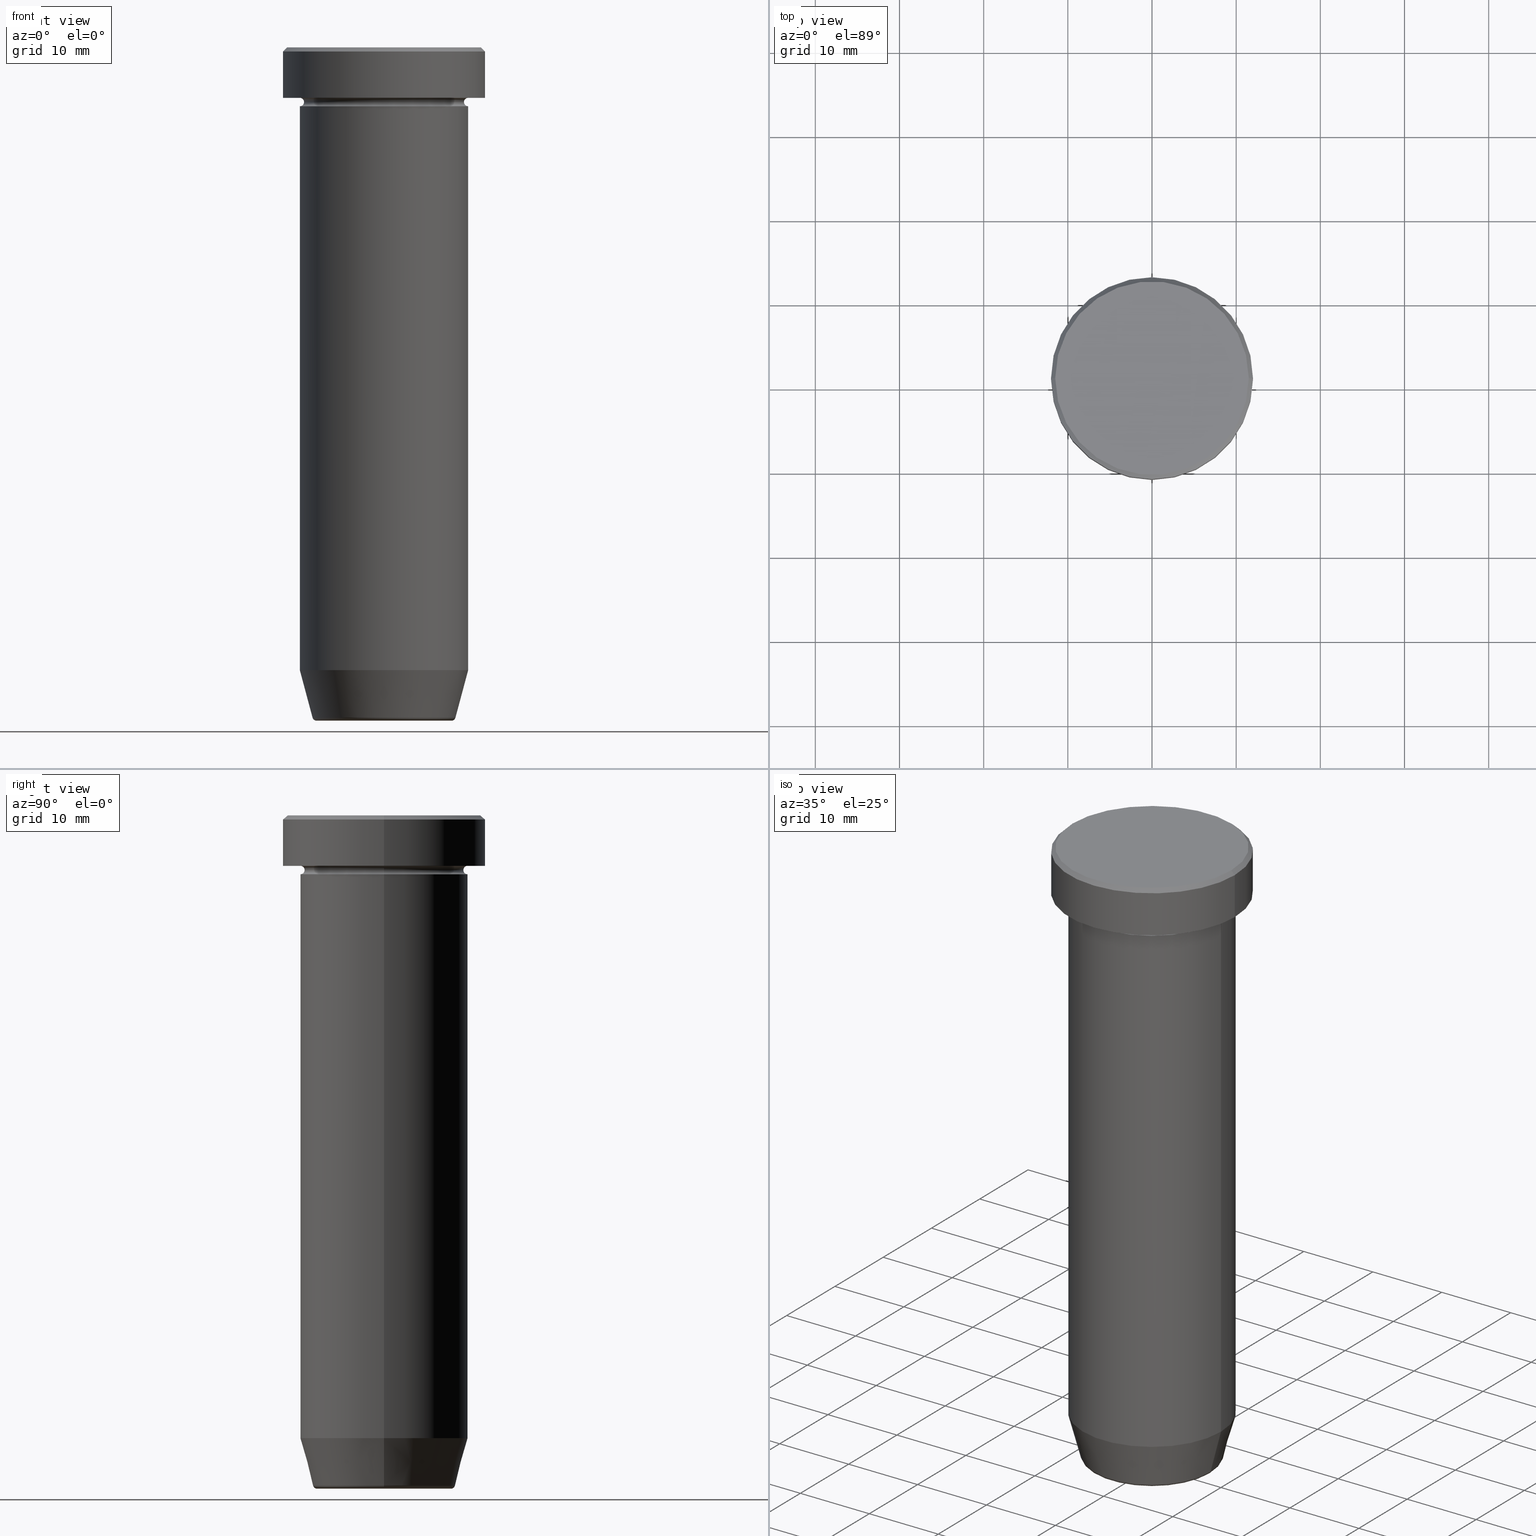
[diagram: canonical four-view strip — front | top / right | iso, engineering-drawing reading convention]
A machine part, canonical four-view strip (front | top / right | iso — engineering-drawing reading convention). The complete STEP part file that produces these views, byte-faithful:
ISO-10303-21;
HEADER;
FILE_DESCRIPTION (( 'STEP AP203' ),
    '1' );
FILE_NAME ('8bd7.STEP',
    '2024-01-02T20:49:21',
    ( '' ),
    ( '' ),
    'SwSTEP 2.0',
    'SolidWorks 2019',
    '' );
FILE_SCHEMA (( 'CONFIG_CONTROL_DESIGN' ));
ENDSEC;

DATA;
#1 = ORIENTED_EDGE ( 'NONE', *, *, #551, .F. ) ;
#2 = DIRECTION ( 'NONE',  ( 1.000000000000000000, 0.000000000000000000, 0.000000000000000000 ) ) ;
#3 = CARTESIAN_POINT ( 'NONE',  ( -9.999999999999998224, 1.224646799147353059E-15, 0.000000000000000000 ) ) ;
#4 = VECTOR ( 'NONE', #360, 1000.000000000000000 ) ;
#5 = CARTESIAN_POINT ( 'NONE',  ( -10.00000000000000000, 1.224646799147353256E-15, -6.999999999999999112 ) ) ;
#6 = UNCERTAINTY_MEASURE_WITH_UNIT (LENGTH_MEASURE( 1.000000000000000082E-05 ), #138, 'distance_accuracy_value', 'NONE');
#7 = CIRCLE ( 'NONE', #552, 10.00000000000000000 ) ;
#8 = AXIS2_PLACEMENT_3D ( 'NONE', #95, #547, #2 ) ;
#9 = LINE ( 'NONE', #133, #162 ) ;
#10 = CARTESIAN_POINT ( 'NONE',  ( -9.999999999999998224, 1.224646799147353059E-15, -74.00000000000000000 ) ) ;
#11 = ADVANCED_FACE ( 'NONE', ( #256 ), #363, .T. ) ;
#12 = FACE_OUTER_BOUND ( 'NONE', #405, .T. ) ;
#13 = AXIS2_PLACEMENT_3D ( 'NONE', #532, #304, #534 ) ;
#14 = CC_DESIGN_PERSON_AND_ORGANIZATION_ASSIGNMENT ( #125, #343, ( #379 ) ) ;
#15 = AXIS2_PLACEMENT_3D ( 'NONE', #237, #385, #413 ) ;
#16 = AXIS2_PLACEMENT_3D ( 'NONE', #272, #348, #215 ) ;
#17 = VECTOR ( 'NONE', #230, 1000.000000000000000 ) ;
#18 = CC_DESIGN_APPROVAL ( #190, ( #132 ) ) ;
#19 = ORIENTED_EDGE ( 'NONE', *, *, #240, .T. ) ;
#20 = EDGE_CURVE ( 'NONE', #126, #492, #188, .T. ) ;
#21 = AXIS2_PLACEMENT_3D ( 'NONE', #326, #105, #330 ) ;
#22 = COORDINATED_UNIVERSAL_TIME_OFFSET ( 1, 0, .AHEAD. ) ;
#23 = DIRECTION ( 'NONE',  ( 1.000000000000000000, 0.000000000000000000, 0.000000000000000000 ) ) ;
#24 = COORDINATED_UNIVERSAL_TIME_OFFSET ( 1, 0, .AHEAD. ) ;
#25 = CIRCLE ( 'NONE', #455, 8.008641351423779753 ) ;
#26 = CARTESIAN_POINT ( 'NONE',  ( 10.00000000000000000, 0.000000000000000000, -6.499999999999999112 ) ) ;
#27 = ORIENTED_EDGE ( 'NONE', *, *, #322, .T. ) ;
#28 = TOROIDAL_SURFACE ( 'NONE', #254, 10.00000000000000000, 0.5000000000000000000 ) ;
#29 = DIRECTION ( 'NONE',  ( -0.000000000000000000, -0.000000000000000000, 1.000000000000000000 ) ) ;
#30 = ADVANCED_FACE ( 'NONE', ( #432 ), #153, .T. ) ;
#31 = APPROVAL ( #591, 'NEUR�EN�' ) ;
#32 = ORIENTED_EDGE ( 'NONE', *, *, #20, .T. ) ;
#33 = AXIS2_PLACEMENT_3D ( 'NONE', #560, #29, #290 ) ;
#34 = DIRECTION ( 'NONE',  ( 0.000000000000000000, 0.000000000000000000, -1.000000000000000000 ) ) ;
#35 = ORIENTED_EDGE ( 'NONE', *, *, #298, .F. ) ;
#36 = CARTESIAN_POINT ( 'NONE',  ( 10.00000000000000000, 0.000000000000000000, -20.00000000000000000 ) ) ;
#37 = DIRECTION ( 'NONE',  ( -0.000000000000000000, -0.000000000000000000, 1.000000000000000000 ) ) ;
#38 = ADVANCED_FACE ( 'NONE', ( #340 ), #320, .T. ) ;
#39 = LOCAL_TIME ( 21, 49, 21.00000000000000000, #22 ) ;
#40 = DIRECTION ( 'NONE',  ( 0.000000000000000000, 0.000000000000000000, -1.000000000000000000 ) ) ;
#41 = ORIENTED_EDGE ( 'NONE', *, *, #576, .F. ) ;
#42 = DIRECTION ( 'NONE',  ( -0.000000000000000000, -0.000000000000000000, 1.000000000000000000 ) ) ;
#43 = CARTESIAN_POINT ( 'NONE',  ( 0.000000000000000000, 0.000000000000000000, -6.499999999999999112 ) ) ;
#44 = VECTOR ( 'NONE', #540, 1000.000000000000000 ) ;
#45 = CYLINDRICAL_SURFACE ( 'NONE', #299, 10.00000000000000000 ) ;
#46 = AXIS2_PLACEMENT_3D ( 'NONE', #506, #232, #317 ) ;
#47 = EDGE_CURVE ( 'NONE', #517, #115, #577, .T. ) ;
#48 = FACE_OUTER_BOUND ( 'NONE', #426, .T. ) ;
#49 = DIRECTION ( 'NONE',  ( -1.000000000000000000, 0.000000000000000000, 0.000000000000000000 ) ) ;
#50 = ORIENTED_EDGE ( 'NONE', *, *, #213, .T. ) ;
#51 = FACE_OUTER_BOUND ( 'NONE', #555, .T. ) ;
#52 = DIRECTION ( 'NONE',  ( 1.000000000000000000, 0.000000000000000000, 0.000000000000000000 ) ) ;
#53 = EDGE_CURVE ( 'NONE', #454, #492, #209, .T. ) ;
#54 = TOROIDAL_SURFACE ( 'NONE', #284, 8.008641351423779753, 0.5000000000000000000 ) ;
#55 = CONICAL_SURFACE ( 'NONE', #181, 11.49999999999999822, 0.7853981633974447263 ) ;
#56 = PERSON_AND_ORGANIZATION ( #250, #543 ) ;
#57 = EDGE_LOOP ( 'NONE', ( #359, #148, #197, #357 ) ) ;
#58 = EDGE_CURVE ( 'NONE', #580, #436, #470, .T. ) ;
#59 = CARTESIAN_POINT ( 'NONE',  ( 0.000000000000000000, 0.000000000000000000, 0.000000000000000000 ) ) ;
#60 = DIRECTION ( 'NONE',  ( 0.000000000000000000, 0.000000000000000000, -1.000000000000000000 ) ) ;
#61 = CIRCLE ( 'NONE', #364, 10.00000000000000000 ) ;
#62 = COORDINATED_UNIVERSAL_TIME_OFFSET ( 1, 0, .AHEAD. ) ;
#63 = ORIENTED_EDGE ( 'NONE', *, *, #68, .F. ) ;
#64 = DIRECTION ( 'NONE',  ( 1.000000000000000000, 0.000000000000000000, 0.000000000000000000 ) ) ;
#65 = DIRECTION ( 'NONE',  ( -0.000000000000000000, -0.000000000000000000, 1.000000000000000000 ) ) ;
#66 = PLANE ( 'NONE',  #501 ) ;
#67 = APPROVAL_ROLE ( '' ) ;
#68 = EDGE_CURVE ( 'NONE', #492, #126, #559, .T. ) ;
#69 = VERTEX_POINT ( 'NONE', #578 ) ;
#70 = DIRECTION ( 'NONE',  ( 1.000000000000000000, 0.000000000000000000, 0.000000000000000000 ) ) ;
#71 = AXIS2_PLACEMENT_3D ( 'NONE', #117, #266, #313 ) ;
#72 = APPROVAL_ROLE ( '' ) ;
#73 = CC_DESIGN_APPROVAL ( #31, ( #379 ) ) ;
#74 = DIRECTION ( 'NONE',  ( 1.000000000000000000, 0.000000000000000000, 0.000000000000000000 ) ) ;
#75 = DIRECTION ( 'NONE',  ( 0.000000000000000000, 0.000000000000000000, -1.000000000000000000 ) ) ;
#76 = ORIENTED_EDGE ( 'NONE', *, *, #199, .T. ) ;
#77 = ORIENTED_EDGE ( 'NONE', *, *, #403, .T. ) ;
#78 = DIRECTION ( 'NONE',  ( -0.000000000000000000, -0.000000000000000000, 1.000000000000000000 ) ) ;
#79 = CARTESIAN_POINT ( 'NONE',  ( 0.000000000000000000, 0.000000000000000000, -79.62940952255127058 ) ) ;
#80 = DIRECTION ( 'NONE',  ( -0.000000000000000000, -0.000000000000000000, 1.000000000000000000 ) ) ;
#81 = EDGE_CURVE ( 'NONE', #124, #126, #353, .T. ) ;
#82 = COORDINATED_UNIVERSAL_TIME_OFFSET ( 1, 0, .AHEAD. ) ;
#83 = DIRECTION ( 'NONE',  ( -0.000000000000000000, -0.000000000000000000, 1.000000000000000000 ) ) ;
#84 = ORIENTED_EDGE ( 'NONE', *, *, #113, .T. ) ;
#85 = EDGE_LOOP ( 'NONE', ( #27, #301 ) ) ;
#86 = AXIS2_PLACEMENT_3D ( 'NONE', #123, #75, #206 ) ;
#87 = CARTESIAN_POINT ( 'NONE',  ( 0.000000000000000000, 0.000000000000000000, -80.00000000000000000 ) ) ;
#88 = CARTESIAN_POINT ( 'NONE',  ( 0.000000000000000000, 0.000000000000000000, -0.5000000000000056621 ) ) ;
#89 = PRODUCT ( '8bd7', '8bd7', '', ( #508 ) ) ;
#90 = ORIENTED_EDGE ( 'NONE', *, *, #382, .F. ) ;
#91 = APPROVAL_DATE_TIME ( #365, #497 ) ;
#92 = CARTESIAN_POINT ( 'NONE',  ( 0.000000000000000000, 0.000000000000000000, -80.00000000000000000 ) ) ;
#93 = ADVANCED_FACE ( 'NONE', ( #307 ), #261, .T. ) ;
#94 = VERTEX_POINT ( 'NONE', #283 ) ;
#95 = CARTESIAN_POINT ( 'NONE',  ( 0.000000000000000000, 0.000000000000000000, 0.000000000000000000 ) ) ;
#96 = AXIS2_PLACEMENT_3D ( 'NONE', #59, #392, #64 ) ;
#97 = FACE_BOUND ( 'NONE', #459, .T. ) ;
#98 = AXIS2_PLACEMENT_3D ( 'NONE', #293, #65, #23 ) ;
#99 = CARTESIAN_POINT ( 'NONE',  ( 0.000000000000000000, 0.000000000000000000, -79.62940952255127058 ) ) ;
#100 = ORIENTED_EDGE ( 'NONE', *, *, #213, .F. ) ;
#101 = CARTESIAN_POINT ( 'NONE',  ( 9.999999999999998224, 0.000000000000000000, -74.00000000000000000 ) ) ;
#102 = EDGE_CURVE ( 'NONE', #115, #580, #186, .T. ) ;
#103 = FACE_OUTER_BOUND ( 'NONE', #204, .T. ) ;
#104 = CARTESIAN_POINT ( 'NONE',  ( 0.000000000000000000, 0.000000000000000000, -6.499999999999999112 ) ) ;
#105 = DIRECTION ( 'NONE',  ( 0.000000000000000000, -0.000000000000000000, 1.000000000000000000 ) ) ;
#106 = CARTESIAN_POINT ( 'NONE',  ( 8.008641351423779753, 0.000000000000000000, -80.00000000000000000 ) ) ;
#107 = CIRCLE ( 'NONE', #275, 9.500000000000000000 ) ;
#108 =( GEOMETRIC_REPRESENTATION_CONTEXT ( 3 ) GLOBAL_UNCERTAINTY_ASSIGNED_CONTEXT ( ( #6 ) ) GLOBAL_UNIT_ASSIGNED_CONTEXT ( ( #138, #135, #288 ) ) REPRESENTATION_CONTEXT ( 'NONE', 'WORKASPACE' ) );
#109 = DATE_TIME_ROLE ( 'creation_date' ) ;
#110 = DATE_AND_TIME ( #430, #39 ) ;
#111 = AXIS2_PLACEMENT_3D ( 'NONE', #485, #80, #588 ) ;
#112 = APPROVAL_PERSON_ORGANIZATION ( #294, #31, #67 ) ;
#113 = EDGE_CURVE ( 'NONE', #479, #224, #527, .T. ) ;
#114 = PLANE ( 'NONE',  #585 ) ;
#115 = VERTEX_POINT ( 'NONE', #372 ) ;
#116 = SECURITY_CLASSIFICATION_LEVEL ( 'unclassified' ) ;
#117 = CARTESIAN_POINT ( 'NONE',  ( 8.008641351423779753, 0.000000000000000000, -79.50000000000000000 ) ) ;
#118 = CC_DESIGN_DATE_AND_TIME_ASSIGNMENT ( #110, #109, ( #132 ) ) ;
#119 = AXIS2_PLACEMENT_3D ( 'NONE', #487, #83, #262 ) ;
#120 = LOCAL_TIME ( 21, 49, 21.00000000000000000, #62 ) ;
#121 = DIRECTION ( 'NONE',  ( -0.000000000000000000, -0.000000000000000000, 1.000000000000000000 ) ) ;
#122 = ADVANCED_FACE ( 'NONE', ( #134 ), #145, .T. ) ;
#123 = CARTESIAN_POINT ( 'NONE',  ( 0.000000000000000000, 0.000000000000000000, -6.500000000000000888 ) ) ;
#124 = VERTEX_POINT ( 'NONE', #393 ) ;
#125 = PERSON_AND_ORGANIZATION ( #250, #543 ) ;
#126 = VERTEX_POINT ( 'NONE', #562 ) ;
#127 = CARTESIAN_POINT ( 'NONE',  ( 9.999999999999998224, 0.000000000000000000, 0.000000000000000000 ) ) ;
#128 = ORIENTED_EDGE ( 'NONE', *, *, #53, .F. ) ;
#129 = ORIENTED_EDGE ( 'NONE', *, *, #68, .T. ) ;
#130 = CARTESIAN_POINT ( 'NONE',  ( 0.000000000000000000, 0.000000000000000000, -79.50000000000000000 ) ) ;
#131 = CIRCLE ( 'NONE', #419, 9.999999999999998224 ) ;
#132 = PRODUCT_DEFINITION ( 'NEZN�M�', '', #379, #450 ) ;
#133 = CARTESIAN_POINT ( 'NONE',  ( -10.00000000000000000, 1.224646799147353256E-15, 0.000000000000000000 ) ) ;
#134 = FACE_OUTER_BOUND ( 'NONE', #221, .T. ) ;
#135 =( NAMED_UNIT ( * ) PLANE_ANGLE_UNIT ( ) SI_UNIT ( $, .RADIAN. ) );
#136 = ORIENTED_EDGE ( 'NONE', *, *, #147, .T. ) ;
#137 = CIRCLE ( 'NONE', #388, 0.5000000000000004441 ) ;
#138 =( LENGTH_UNIT ( ) NAMED_UNIT ( * ) SI_UNIT ( .MILLI., .METRE. ) );
#139 = ADVANCED_FACE ( 'NONE', ( #582 ), #54, .T. ) ;
#140 = PLANE ( 'NONE',  #264 ) ;
#141 = DIRECTION ( 'NONE',  ( -0.000000000000000000, -0.000000000000000000, 1.000000000000000000 ) ) ;
#142 = EDGE_LOOP ( 'NONE', ( #524, #258, #136, #271 ) ) ;
#143 = AXIS2_PLACEMENT_3D ( 'NONE', #99, #383, #179 ) ;
#144 = CIRCLE ( 'NONE', #194, 10.00000000000000000 ) ;
#145 = CYLINDRICAL_SURFACE ( 'NONE', #96, 12.00000000000000000 ) ;
#146 = PERSON_AND_ORGANIZATION_ROLE ( 'creator' ) ;
#147 = EDGE_CURVE ( 'NONE', #431, #517, #349, .T. ) ;
#148 = ORIENTED_EDGE ( 'NONE', *, *, #309, .F. ) ;
#149 = DIRECTION ( 'NONE',  ( 1.000000000000000000, 0.000000000000000000, 0.000000000000000000 ) ) ;
#150 = ORIENTED_EDGE ( 'NONE', *, *, #329, .F. ) ;
#151 = CIRCLE ( 'NONE', #483, 9.500000000000000000 ) ;
#152 = ADVANCED_FACE ( 'NONE', ( #493 ), #338, .T. ) ;
#153 = CYLINDRICAL_SURFACE ( 'NONE', #33, 10.00000000000000000 ) ;
#154 = ORIENTED_EDGE ( 'NONE', *, *, #147, .F. ) ;
#155 = ORIENTED_EDGE ( 'NONE', *, *, #428, .T. ) ;
#156 = ORIENTED_EDGE ( 'NONE', *, *, #81, .F. ) ;
#157 = EDGE_CURVE ( 'NONE', #400, #390, #563, .T. ) ;
#158 = DATE_AND_TIME ( #579, #234 ) ;
#159 = ORIENTED_EDGE ( 'NONE', *, *, #529, .F. ) ;
#160 = TOROIDAL_SURFACE ( 'NONE', #216, 10.00000000000000000, 0.5000000000000000000 ) ;
#161 = VERTEX_POINT ( 'NONE', #36 ) ;
#162 = VECTOR ( 'NONE', #507, 1000.000000000000000 ) ;
#163 = DIRECTION ( 'NONE',  ( 0.000000000000000000, 0.000000000000000000, -1.000000000000000000 ) ) ;
#164 = DIRECTION ( 'NONE',  ( -0.000000000000000000, -0.000000000000000000, 1.000000000000000000 ) ) ;
#165 = LINE ( 'NONE', #127, #44 ) ;
#166 = ORIENTED_EDGE ( 'NONE', *, *, #467, .T. ) ;
#167 = DATE_AND_TIME ( #570, #484 ) ;
#168 = CARTESIAN_POINT ( 'NONE',  ( 10.00000000000000000, 1.224646799147353256E-15, -6.000000000000000000 ) ) ;
#169 = CARTESIAN_POINT ( 'NONE',  ( -12.00000000000000000, 1.469576158976823947E-15, 0.000000000000000000 ) ) ;
#170 = ORIENTED_EDGE ( 'NONE', *, *, #529, .T. ) ;
#171 = ADVANCED_FACE ( 'NONE', ( #396 ), #172, .F. ) ;
#172 = TOROIDAL_SURFACE ( 'NONE', #86, 10.00000000000000000, 0.5000000000000000000 ) ;
#173 = CARTESIAN_POINT ( 'NONE',  ( 0.000000000000000000, 0.000000000000000000, 0.000000000000000000 ) ) ;
#174 = DIRECTION ( 'NONE',  ( -0.000000000000000000, -0.000000000000000000, 1.000000000000000000 ) ) ;
#175 = ORIENTED_EDGE ( 'NONE', *, *, #494, .T. ) ;
#176 = CARTESIAN_POINT ( 'NONE',  ( 0.000000000000000000, 0.000000000000000000, 0.000000000000000000 ) ) ;
#177 = CARTESIAN_POINT ( 'NONE',  ( 0.000000000000000000, 12.00000000000000000, -6.000000000000000000 ) ) ;
#178 = ADVANCED_FACE ( 'NONE', ( #303 ), #358, .T. ) ;
#179 = DIRECTION ( 'NONE',  ( -1.000000000000000000, 0.000000000000000000, 0.000000000000000000 ) ) ;
#180 = LINE ( 'NONE', #225, #17 ) ;
#181 = AXIS2_PLACEMENT_3D ( 'NONE', #469, #466, #242 ) ;
#182 = VECTOR ( 'NONE', #229, 1000.000000000000000 ) ;
#183 = APPLICATION_CONTEXT ( 'configuration controlled 3d designs of mechanical parts and assemblies' ) ;
#184 = DIRECTION ( 'NONE',  ( -1.000000000000000000, 0.000000000000000000, 0.000000000000000000 ) ) ;
#185 = CARTESIAN_POINT ( 'NONE',  ( 0.000000000000000000, 0.000000000000000000, -5.999999999999999112 ) ) ;
#186 = LINE ( 'NONE', #464, #192 ) ;
#187 = CLOSED_SHELL ( 'NONE', ( #289, #418, #274, #30, #122, #354, #93, #178, #269, #371, #502, #171, #38 ) ) ;
#188 = CIRCLE ( 'NONE', #243, 12.00000000000000000 ) ;
#189 = CARTESIAN_POINT ( 'NONE',  ( -10.00000000000000000, 0.000000000000000000, -6.500000000000000888 ) ) ;
#190 = APPROVAL ( #251, 'NEUR�EN�' ) ;
#191 = APPROVAL_DATE_TIME ( #440, #190 ) ;
#192 = VECTOR ( 'NONE', #424, 1000.000000000000000 ) ;
#193 = CIRCLE ( 'NONE', #528, 0.5000000000000004441 ) ;
#194 = AXIS2_PLACEMENT_3D ( 'NONE', #245, #78, #344 ) ;
#195 = ORIENTED_EDGE ( 'NONE', *, *, #58, .F. ) ;
#196 = DIRECTION ( 'NONE',  ( -0.000000000000000000, -0.000000000000000000, 1.000000000000000000 ) ) ;
#197 = ORIENTED_EDGE ( 'NONE', *, *, #329, .T. ) ;
#198 = ORIENTED_EDGE ( 'NONE', *, *, #298, .T. ) ;
#199 = EDGE_CURVE ( 'NONE', #161, #481, #394, .T. ) ;
#200 = AXIS2_PLACEMENT_3D ( 'NONE', #88, #34, #401 ) ;
#201 = CC_DESIGN_PERSON_AND_ORGANIZATION_ASSIGNMENT ( #257, #260, ( #379 ) ) ;
#202 = CARTESIAN_POINT ( 'NONE',  ( -8.008641351423779753, 9.807756996540264321E-16, -79.50000000000000000 ) ) ;
#203 = AXIS2_PLACEMENT_3D ( 'NONE', #87, #273, #70 ) ;
#204 = EDGE_LOOP ( 'NONE', ( #581, #218, #443, #41 ) ) ;
#205 = DIRECTION ( 'NONE',  ( 0.000000000000000000, 0.000000000000000000, -1.000000000000000000 ) ) ;
#206 = DIRECTION ( 'NONE',  ( -1.000000000000000000, 0.000000000000000000, 0.000000000000000000 ) ) ;
#207 = EDGE_LOOP ( 'NONE', ( #417, #19, #521, #154 ) ) ;
#208 = DIRECTION ( 'NONE',  ( -0.000000000000000000, -0.000000000000000000, 1.000000000000000000 ) ) ;
#209 = LINE ( 'NONE', #169, #4 ) ;
#210 = APPROVAL_STATUS ( 'not_yet_approved' ) ;
#211 = ORIENTED_EDGE ( 'NONE', *, *, #411, .T. ) ;
#212 = ORIENTED_EDGE ( 'NONE', *, *, #557, .F. ) ;
#213 = EDGE_CURVE ( 'NONE', #124, #454, #378, .T. ) ;
#214 = ORIENTED_EDGE ( 'NONE', *, *, #102, .F. ) ;
#215 = DIRECTION ( 'NONE',  ( 1.000000000000000000, 0.000000000000000000, 0.000000000000000000 ) ) ;
#216 = AXIS2_PLACEMENT_3D ( 'NONE', #104, #356, #519 ) ;
#217 = PERSON_AND_ORGANIZATION_ROLE ( 'design_owner' ) ;
#218 = ORIENTED_EDGE ( 'NONE', *, *, #102, .T. ) ;
#219 = EDGE_CURVE ( 'NONE', #69, #539, #248, .T. ) ;
#220 = DIRECTION ( 'NONE',  ( -1.000000000000000000, 0.000000000000000000, -0.000000000000000000 ) ) ;
#221 = EDGE_LOOP ( 'NONE', ( #50, #587, #129, #156 ) ) ;
#222 = DIRECTION ( 'NONE',  ( -0.000000000000000000, -0.000000000000000000, 1.000000000000000000 ) ) ;
#223 = CARTESIAN_POINT ( 'NONE',  ( 0.000000000000000000, 10.00000000000000000, -20.00000000000000000 ) ) ;
#224 = VERTEX_POINT ( 'NONE', #168 ) ;
#225 = CARTESIAN_POINT ( 'NONE',  ( 10.00000000000000000, 0.000000000000000000, 0.000000000000000000 ) ) ;
#226 = CIRCLE ( 'NONE', #429, 0.5000000000000004441 ) ;
#227 = ADVANCED_FACE ( 'NONE', ( #536 ), #541, .T. ) ;
#228 = DIRECTION ( 'NONE',  ( -1.000000000000000000, 0.000000000000000000, -0.000000000000000000 ) ) ;
#229 = DIRECTION ( 'NONE',  ( 0.2588190451025209060, 0.000000000000000000, 0.9659258262890682012 ) ) ;
#230 = DIRECTION ( 'NONE',  ( -0.000000000000000000, -0.000000000000000000, 1.000000000000000000 ) ) ;
#231 = DIRECTION ( 'NONE',  ( -0.7071067811865451302, 0.000000000000000000, -0.7071067811865500152 ) ) ;
#232 = DIRECTION ( 'NONE',  ( -0.000000000000000000, -0.000000000000000000, 1.000000000000000000 ) ) ;
#233 = AXIS2_PLACEMENT_3D ( 'NONE', #92, #60, #247 ) ;
#234 = LOCAL_TIME ( 21, 49, 21.00000000000000000, #24 ) ;
#235 = CARTESIAN_POINT ( 'NONE',  ( 8.392304845413260495, 0.000000000000000000, -80.00000000000000000 ) ) ;
#236 = CARTESIAN_POINT ( 'NONE',  ( 0.000000000000000000, 0.000000000000000000, -6.000000000000000000 ) ) ;
#237 = CARTESIAN_POINT ( 'NONE',  ( 10.00000000000000000, 1.224646799147353256E-15, -6.500000000000000888 ) ) ;
#238 = CARTESIAN_POINT ( 'NONE',  ( 0.000000000000000000, 0.000000000000000000, -74.00000000000000000 ) ) ;
#239 = DIRECTION ( 'NONE',  ( -0.000000000000000000, -0.000000000000000000, 1.000000000000000000 ) ) ;
#240 = EDGE_CURVE ( 'NONE', #373, #115, #226, .T. ) ;
#241 = DIRECTION ( 'NONE',  ( -1.000000000000000000, 0.000000000000000000, -0.000000000000000000 ) ) ;
#242 = DIRECTION ( 'NONE',  ( -1.000000000000000000, 0.000000000000000000, 0.000000000000000000 ) ) ;
#243 = AXIS2_PLACEMENT_3D ( 'NONE', #263, #40, #567 ) ;
#244 = DIRECTION ( 'NONE',  ( 1.000000000000000000, 0.000000000000000000, 0.000000000000000000 ) ) ;
#245 = CARTESIAN_POINT ( 'NONE',  ( 0.000000000000000000, 0.000000000000000000, -20.00000000000000000 ) ) ;
#246 = VERTEX_POINT ( 'NONE', #522 ) ;
#247 = DIRECTION ( 'NONE',  ( 1.000000000000000000, 0.000000000000000000, 0.000000000000000000 ) ) ;
#248 = CIRCLE ( 'NONE', #350, 0.5000000000000004441 ) ;
#249 = ADVANCED_FACE ( 'NONE', ( #270 ), #114, .F. ) ;
#250 = PERSON ( 'NEUR�EN�', 'NEUR�EN�', 'NEUR�EN�', ('NEUR�EN�'), ('NEUR�EN�'), ('NEUR�EN�') ) ;
#251 = APPROVAL_STATUS ( 'not_yet_approved' ) ;
#252 = APPROVAL_DATE_TIME ( #167, #31 ) ;
#253 = AXIS2_PLACEMENT_3D ( 'NONE', #427, #277, #52 ) ;
#254 = AXIS2_PLACEMENT_3D ( 'NONE', #43, #196, #149 ) ;
#255 = DATE_TIME_ROLE ( 'classification_date' ) ;
#256 = FACE_OUTER_BOUND ( 'NONE', #399, .T. ) ;
#257 = PERSON_AND_ORGANIZATION ( #250, #543 ) ;
#258 = ORIENTED_EDGE ( 'NONE', *, *, #411, .F. ) ;
#259 = ORIENTED_EDGE ( 'NONE', *, *, #309, .T. ) ;
#260 = PERSON_AND_ORGANIZATION_ROLE ( 'creator' ) ;
#261 = PLANE ( 'NONE',  #21 ) ;
#262 = DIRECTION ( 'NONE',  ( 1.000000000000000000, 0.000000000000000000, 0.000000000000000000 ) ) ;
#263 = CARTESIAN_POINT ( 'NONE',  ( 0.000000000000000000, 0.000000000000000000, -0.5000000000000056621 ) ) ;
#264 = AXIS2_PLACEMENT_3D ( 'NONE', #177, #471, #241 ) ;
#265 = DIRECTION ( 'NONE',  ( 1.000000000000000000, 0.000000000000000000, 0.000000000000000000 ) ) ;
#266 = DIRECTION ( 'NONE',  ( 0.000000000000000000, -1.000000000000000000, 0.000000000000000000 ) ) ;
#267 = CIRCLE ( 'NONE', #389, 12.00000000000000000 ) ;
#268 = CARTESIAN_POINT ( 'NONE',  ( -10.00000000000000000, 1.224646799147353256E-15, -20.00000000000000000 ) ) ;
#269 = ADVANCED_FACE ( 'NONE', ( #97, #465 ), #140, .T. ) ;
#270 = FACE_OUTER_BOUND ( 'NONE', #409, .T. ) ;
#271 = ORIENTED_EDGE ( 'NONE', *, *, #453, .F. ) ;
#272 = CARTESIAN_POINT ( 'NONE',  ( 0.000000000000000000, 0.000000000000000000, 0.000000000000000000 ) ) ;
#273 = DIRECTION ( 'NONE',  ( -0.000000000000000000, -0.000000000000000000, 1.000000000000000000 ) ) ;
#274 = ADVANCED_FACE ( 'NONE', ( #12 ), #160, .F. ) ;
#275 = AXIS2_PLACEMENT_3D ( 'NONE', #451, #37, #265 ) ;
#276 = CIRCLE ( 'NONE', #143, 8.491604264568316296 ) ;
#277 = DIRECTION ( 'NONE',  ( -0.000000000000000000, -0.000000000000000000, 1.000000000000000000 ) ) ;
#278 = CARTESIAN_POINT ( 'NONE',  ( 0.000000000000000000, 0.000000000000000000, -6.000000000000000000 ) ) ;
#279 = ORIENTED_EDGE ( 'NONE', *, *, #477, .T. ) ;
#280 = CARTESIAN_POINT ( 'NONE',  ( 8.491604264568316296, 0.000000000000000000, -79.62940952255127058 ) ) ;
#281 = AXIS2_PLACEMENT_3D ( 'NONE', #79, #222, #316 ) ;
#282 = LINE ( 'NONE', #3, #472 ) ;
#283 = CARTESIAN_POINT ( 'NONE',  ( -10.00000000000000000, 0.000000000000000000, -6.000000000000000000 ) ) ;
#284 = AXIS2_PLACEMENT_3D ( 'NONE', #130, #305, #486 ) ;
#285 = AXIS2_PLACEMENT_3D ( 'NONE', #500, #239, #462 ) ;
#286 = ADVANCED_FACE ( 'NONE', ( #509 ), #66, .F. ) ;
#287 = AXIS2_PLACEMENT_3D ( 'NONE', #176, #174, #504 ) ;
#288 =( NAMED_UNIT ( * ) SI_UNIT ( $, .STERADIAN. ) SOLID_ANGLE_UNIT ( ) );
#289 = ADVANCED_FACE ( 'NONE', ( #328 ), #55, .T. ) ;
#290 = DIRECTION ( 'NONE',  ( 1.000000000000000000, 0.000000000000000000, 0.000000000000000000 ) ) ;
#291 = CONICAL_SURFACE ( 'NONE', #285, 8.392304845413260495, 0.2617993877991495744 ) ;
#292 = SHAPE_DEFINITION_REPRESENTATION ( #438, #542 ) ;
#293 = CARTESIAN_POINT ( 'NONE',  ( 0.000000000000000000, 0.000000000000000000, -79.50000000000000000 ) ) ;
#294 = PERSON_AND_ORGANIZATION ( #250, #543 ) ;
#295 = ORIENTED_EDGE ( 'NONE', *, *, #387, .T. ) ;
#296 = CARTESIAN_POINT ( 'NONE',  ( 0.000000000000000000, 3.673940397442059178E-15, -80.00000000000000000 ) ) ;
#297 = ORIENTED_EDGE ( 'NONE', *, *, #157, .F. ) ;
#298 = EDGE_CURVE ( 'NONE', #69, #94, #193, .T. ) ;
#299 = AXIS2_PLACEMENT_3D ( 'NONE', #173, #499, #599 ) ;
#300 = DIRECTION ( 'NONE',  ( 1.000000000000000000, 0.000000000000000000, 0.000000000000000000 ) ) ;
#301 = ORIENTED_EDGE ( 'NONE', *, *, #157, .T. ) ;
#302 = MANIFOLD_SOLID_BREP ( 'Zaoblit4', #558 ) ;
#303 = FACE_OUTER_BOUND ( 'NONE', #315, .T. ) ;
#304 = DIRECTION ( 'NONE',  ( -0.000000000000000000, -0.000000000000000000, 1.000000000000000000 ) ) ;
#305 = DIRECTION ( 'NONE',  ( -0.000000000000000000, -0.000000000000000000, 1.000000000000000000 ) ) ;
#306 = ORIENTED_EDGE ( 'NONE', *, *, #335, .F. ) ;
#307 = FACE_OUTER_BOUND ( 'NONE', #523, .T. ) ;
#308 = EDGE_LOOP ( 'NONE', ( #76, #468, #159, #478 ) ) ;
#309 = EDGE_CURVE ( 'NONE', #434, #246, #312, .T. ) ;
#310 = ORIENTED_EDGE ( 'NONE', *, *, #347, .T. ) ;
#311 = ORIENTED_EDGE ( 'NONE', *, *, #199, .F. ) ;
#312 = CIRCLE ( 'NONE', #323, 11.49999999999999822 ) ;
#313 = DIRECTION ( 'NONE',  ( 0.000000000000000000, 0.000000000000000000, -1.000000000000000000 ) ) ;
#314 = AXIS2_PLACEMENT_3D ( 'NONE', #461, #457, #366 ) ;
#315 = EDGE_LOOP ( 'NONE', ( #128, #352, #488, #32 ) ) ;
#316 = DIRECTION ( 'NONE',  ( -1.000000000000000000, 0.000000000000000000, 0.000000000000000000 ) ) ;
#317 = DIRECTION ( 'NONE',  ( 1.000000000000000000, 0.000000000000000000, 0.000000000000000000 ) ) ;
#318 = ORIENTED_EDGE ( 'NONE', *, *, #557, .T. ) ;
#319 = CARTESIAN_POINT ( 'NONE',  ( 9.500000000000000000, 0.000000000000000000, -6.499999999999999112 ) ) ;
#320 = CONICAL_SURFACE ( 'NONE', #460, 11.49999999999999822, 0.7853981633974447263 ) ;
#321 = CARTESIAN_POINT ( 'NONE',  ( -11.49999999999999822, 0.000000000000000000, 0.000000000000000000 ) ) ;
#322 = EDGE_CURVE ( 'NONE', #390, #400, #512, .T. ) ;
#323 = AXIS2_PLACEMENT_3D ( 'NONE', #510, #333, #244 ) ;
#324 = FACE_OUTER_BOUND ( 'NONE', #574, .T. ) ;
#325 = DIRECTION ( 'NONE',  ( -0.000000000000000000, -0.000000000000000000, 1.000000000000000000 ) ) ;
#326 = CARTESIAN_POINT ( 'NONE',  ( 0.000000000000000000, 0.000000000000000000, 0.000000000000000000 ) ) ;
#327 = APPLICATION_PROTOCOL_DEFINITION ( 'international standard', 'config_control_design', 1994, #183 ) ;
#328 = FACE_OUTER_BOUND ( 'NONE', #441, .T. ) ;
#329 = EDGE_CURVE ( 'NONE', #434, #492, #458, .T. ) ;
#330 = DIRECTION ( 'NONE',  ( 1.000000000000000000, 0.000000000000000000, 0.000000000000000000 ) ) ;
#331 = TOROIDAL_SURFACE ( 'NONE', #410, 10.00000000000000000, 0.5000000000000000000 ) ;
#332 = CC_DESIGN_APPROVAL ( #497, ( #598 ) ) ;
#333 = DIRECTION ( 'NONE',  ( -0.000000000000000000, -0.000000000000000000, 1.000000000000000000 ) ) ;
#334 = CALENDAR_DATE ( 2024, 2, 1 ) ;
#335 = EDGE_CURVE ( 'NONE', #224, #94, #61, .T. ) ;
#336 = AXIS2_PLACEMENT_3D ( 'NONE', #445, #42, #490 ) ;
#337 = ORIENTED_EDGE ( 'NONE', *, *, #494, .F. ) ;
#338 = CONICAL_SURFACE ( 'NONE', #203, 8.392304845413260495, 0.2617993877991495744 ) ;
#339 = ORIENTED_EDGE ( 'NONE', *, *, #453, .T. ) ;
#340 = FACE_OUTER_BOUND ( 'NONE', #57, .T. ) ;
#341 = DIRECTION ( 'NONE',  ( -1.000000000000000000, 1.224646799147353454E-16, 0.000000000000000000 ) ) ;
#342 = EDGE_LOOP ( 'NONE', ( #565, #337, #77, #170 ) ) ;
#343 = PERSON_AND_ORGANIZATION_ROLE ( 'design_supplier' ) ;
#344 = DIRECTION ( 'NONE',  ( 1.000000000000000000, 0.000000000000000000, 0.000000000000000000 ) ) ;
#345 = DIRECTION ( 'NONE',  ( 0.000000000000000000, 0.000000000000000000, -1.000000000000000000 ) ) ;
#346 = EDGE_LOOP ( 'NONE', ( #546, #175, #198, #306 ) ) ;
#347 = EDGE_CURVE ( 'NONE', #246, #126, #545, .T. ) ;
#348 = DIRECTION ( 'NONE',  ( -0.000000000000000000, -0.000000000000000000, 1.000000000000000000 ) ) ;
#349 = CIRCLE ( 'NONE', #71, 0.5000000000000004441 ) ;
#350 = AXIS2_PLACEMENT_3D ( 'NONE', #448, #407, #593 ) ;
#351 = LOCAL_TIME ( 21, 49, 21.00000000000000000, #571 ) ;
#352 = ORIENTED_EDGE ( 'NONE', *, *, #592, .T. ) ;
#353 = LINE ( 'NONE', #586, #535 ) ;
#354 = ADVANCED_FACE ( 'NONE', ( #324 ), #505, .T. ) ;
#355 = PERSON_AND_ORGANIZATION_ROLE ( 'classification_officer' ) ;
#356 = DIRECTION ( 'NONE',  ( -0.000000000000000000, -0.000000000000000000, 1.000000000000000000 ) ) ;
#357 = ORIENTED_EDGE ( 'NONE', *, *, #20, .F. ) ;
#358 = CYLINDRICAL_SURFACE ( 'NONE', #16, 12.00000000000000000 ) ;
#359 = ORIENTED_EDGE ( 'NONE', *, *, #347, .F. ) ;
#360 = DIRECTION ( 'NONE',  ( -0.000000000000000000, -0.000000000000000000, 1.000000000000000000 ) ) ;
#361 = CARTESIAN_POINT ( 'NONE',  ( -8.008641351423779753, 1.010348648938493172E-15, -80.00000000000000000 ) ) ;
#362 = DIRECTION ( 'NONE',  ( 0.7071067811865451302, 8.659560562354903276E-17, -0.7071067811865500152 ) ) ;
#363 = CYLINDRICAL_SURFACE ( 'NONE', #13, 9.999999999999998224 ) ;
#364 = AXIS2_PLACEMENT_3D ( 'NONE', #236, #325, #480 ) ;
#365 = DATE_AND_TIME ( #386, #120 ) ;
#366 = DIRECTION ( 'NONE',  ( 1.000000000000000000, 0.000000000000000000, 0.000000000000000000 ) ) ;
#367 = CC_DESIGN_SECURITY_CLASSIFICATION ( #598, ( #379 ) ) ;
#368 = DIRECTION ( 'NONE',  ( -0.000000000000000000, -0.000000000000000000, 1.000000000000000000 ) ) ;
#369 = FACE_OUTER_BOUND ( 'NONE', #342, .T. ) ;
#370 = CARTESIAN_POINT ( 'NONE',  ( 10.00000000000000000, 0.000000000000000000, -6.999999999999999112 ) ) ;
#371 = ADVANCED_FACE ( 'NONE', ( #495 ), #45, .T. ) ;
#372 = CARTESIAN_POINT ( 'NONE',  ( -8.491604264568316296, 1.132284198685156584E-15, -79.62940952255127058 ) ) ;
#373 = VERTEX_POINT ( 'NONE', #361 ) ;
#374 = DIRECTION ( 'NONE',  ( -0.000000000000000000, -1.000000000000000000, -0.000000000000000000 ) ) ;
#375 = CARTESIAN_POINT ( 'NONE',  ( -12.00000000000000000, 1.469576158976823947E-15, -5.999999999999999112 ) ) ;
#376 = DIRECTION ( 'NONE',  ( -0.000000000000000000, -0.000000000000000000, 1.000000000000000000 ) ) ;
#377 = CYLINDRICAL_SURFACE ( 'NONE', #46, 9.999999999999998224 ) ;
#378 = CIRCLE ( 'NONE', #119, 12.00000000000000000 ) ;
#379 = PRODUCT_DEFINITION_FORMATION_WITH_SPECIFIED_SOURCE ( 'LIBOVOLN�', '', #89, .NOT_KNOWN. ) ;
#380 = DIRECTION ( 'NONE',  ( 1.000000000000000000, 0.000000000000000000, 0.000000000000000000 ) ) ;
#381 = LINE ( 'NONE', #235, #182 ) ;
#382 = EDGE_CURVE ( 'NONE', #539, #549, #7, .T. ) ;
#383 = DIRECTION ( 'NONE',  ( -0.000000000000000000, -0.000000000000000000, 1.000000000000000000 ) ) ;
#384 = ORIENTED_EDGE ( 'NONE', *, *, #395, .T. ) ;
#385 = DIRECTION ( 'NONE',  ( -1.224646799147353207E-16, 1.000000000000000000, 0.000000000000000000 ) ) ;
#386 = CALENDAR_DATE ( 2024, 2, 1 ) ;
#387 = EDGE_CURVE ( 'NONE', #436, #390, #165, .T. ) ;
#388 = AXIS2_PLACEMENT_3D ( 'NONE', #26, #398, #345 ) ;
#389 = AXIS2_PLACEMENT_3D ( 'NONE', #185, #376, #548 ) ;
#390 = VERTEX_POINT ( 'NONE', #442 ) ;
#391 = ORIENTED_EDGE ( 'NONE', *, *, #537, .T. ) ;
#392 = DIRECTION ( 'NONE',  ( -0.000000000000000000, -0.000000000000000000, 1.000000000000000000 ) ) ;
#393 = CARTESIAN_POINT ( 'NONE',  ( 12.00000000000000000, 0.000000000000000000, -5.999999999999999112 ) ) ;
#394 = CIRCLE ( 'NONE', #111, 10.00000000000000000 ) ;
#395 = EDGE_CURVE ( 'NONE', #436, #580, #131, .T. ) ;
#396 = FACE_OUTER_BOUND ( 'NONE', #346, .T. ) ;
#397 = PERSON_AND_ORGANIZATION ( #250, #543 ) ;
#398 = DIRECTION ( 'NONE',  ( 0.000000000000000000, -1.000000000000000000, 0.000000000000000000 ) ) ;
#399 = EDGE_LOOP ( 'NONE', ( #594, #452, #295, #297 ) ) ;
#400 = VERTEX_POINT ( 'NONE', #268 ) ;
#401 = DIRECTION ( 'NONE',  ( 1.000000000000000000, 0.000000000000000000, 0.000000000000000000 ) ) ;
#402 = PERSON_AND_ORGANIZATION ( #250, #543 ) ;
#403 = EDGE_CURVE ( 'NONE', #479, #549, #137, .T. ) ;
#404 = AXIS2_PLACEMENT_3D ( 'NONE', #223, #449, #220 ) ;
#405 = EDGE_LOOP ( 'NONE', ( #525, #569, #533, #596 ) ) ;
#406 = CARTESIAN_POINT ( 'NONE',  ( -12.00000000000000000, 1.469576158976823947E-15, -0.5000000000000056621 ) ) ;
#407 = DIRECTION ( 'NONE',  ( 1.224646799147353207E-16, 1.000000000000000000, 0.000000000000000000 ) ) ;
#408 = DIRECTION ( 'NONE',  ( 0.000000000000000000, -0.000000000000000000, 1.000000000000000000 ) ) ;
#409 = EDGE_LOOP ( 'NONE', ( #211, #279 ) ) ;
#410 = AXIS2_PLACEMENT_3D ( 'NONE', #416, #422, #49 ) ;
#411 = EDGE_CURVE ( 'NONE', #431, #373, #25, .T. ) ;
#412 = CIRCLE ( 'NONE', #518, 10.00000000000000000 ) ;
#413 = DIRECTION ( 'NONE',  ( -1.000000000000000000, -1.224646799147353454E-16, 0.000000000000000000 ) ) ;
#414 = EDGE_LOOP ( 'NONE', ( #100, #447 ) ) ;
#415 = CC_DESIGN_DATE_AND_TIME_ASSIGNMENT ( #158, #255, ( #598 ) ) ;
#416 = CARTESIAN_POINT ( 'NONE',  ( 0.000000000000000000, 0.000000000000000000, -6.500000000000000888 ) ) ;
#417 = ORIENTED_EDGE ( 'NONE', *, *, #477, .F. ) ;
#418 = ADVANCED_FACE ( 'NONE', ( #48 ), #331, .F. ) ;
#419 = AXIS2_PLACEMENT_3D ( 'NONE', #238, #473, #583 ) ;
#420 = CARTESIAN_POINT ( 'NONE',  ( -11.49999999999999822, 0.000000000000000000, 0.000000000000000000 ) ) ;
#421 = CIRCLE ( 'NONE', #287, 11.49999999999999822 ) ;
#422 = DIRECTION ( 'NONE',  ( 0.000000000000000000, 0.000000000000000000, -1.000000000000000000 ) ) ;
#423 = CC_DESIGN_PERSON_AND_ORGANIZATION_ASSIGNMENT ( #554, #146, ( #132 ) ) ;
#424 = DIRECTION ( 'NONE',  ( -0.2588190451025209060, 3.169619151431766790E-17, 0.9659258262890682012 ) ) ;
#425 = ORIENTED_EDGE ( 'NONE', *, *, #335, .T. ) ;
#426 = EDGE_LOOP ( 'NONE', ( #166, #84, #212, #35 ) ) ;
#427 = CARTESIAN_POINT ( 'NONE',  ( 0.000000000000000000, 0.000000000000000000, -20.00000000000000000 ) ) ;
#428 = EDGE_CURVE ( 'NONE', #580, #400, #282, .T. ) ;
#429 = AXIS2_PLACEMENT_3D ( 'NONE', #202, #568, #341 ) ;
#430 = CALENDAR_DATE ( 2024, 2, 1 ) ;
#431 = VERTEX_POINT ( 'NONE', #106 ) ;
#432 = FACE_OUTER_BOUND ( 'NONE', #308, .T. ) ;
#433 = CC_DESIGN_PERSON_AND_ORGANIZATION_ASSIGNMENT ( #56, #217, ( #89 ) ) ;
#434 = VERTEX_POINT ( 'NONE', #321 ) ;
#435 = CIRCLE ( 'NONE', #314, 10.00000000000000000 ) ;
#436 = VERTEX_POINT ( 'NONE', #101 ) ;
#437 = DIRECTION ( 'NONE',  ( 0.000000000000000000, 0.000000000000000000, -1.000000000000000000 ) ) ;
#438 = PRODUCT_DEFINITION_SHAPE ( 'NONE', 'NONE',  #132 ) ;
#439 = CARTESIAN_POINT ( 'NONE',  ( 0.000000000000000000, 0.000000000000000000, -20.00000000000000000 ) ) ;
#440 = DATE_AND_TIME ( #334, #351 ) ;
#441 = EDGE_LOOP ( 'NONE', ( #595, #310, #63, #150 ) ) ;
#442 = CARTESIAN_POINT ( 'NONE',  ( 10.00000000000000000, 0.000000000000000000, -20.00000000000000000 ) ) ;
#443 = ORIENTED_EDGE ( 'NONE', *, *, #395, .F. ) ;
#444 = ADVANCED_FACE ( 'NONE', ( #103 ), #291, .T. ) ;
#445 = CARTESIAN_POINT ( 'NONE',  ( 0.000000000000000000, 0.000000000000000000, -74.00000000000000000 ) ) ;
#446 = CARTESIAN_POINT ( 'NONE',  ( -10.00000000000000000, 1.224646799147353256E-15, -20.00000000000000000 ) ) ;
#447 = ORIENTED_EDGE ( 'NONE', *, *, #592, .F. ) ;
#448 = CARTESIAN_POINT ( 'NONE',  ( -10.00000000000000000, 1.224646799147353256E-15, -6.499999999999999112 ) ) ;
#449 = DIRECTION ( 'NONE',  ( 0.000000000000000000, 0.000000000000000000, -1.000000000000000000 ) ) ;
#450 = DESIGN_CONTEXT ( 'detailed design', #573, 'design' ) ;
#451 = CARTESIAN_POINT ( 'NONE',  ( 0.000000000000000000, 0.000000000000000000, -6.499999999999999112 ) ) ;
#452 = ORIENTED_EDGE ( 'NONE', *, *, #58, .T. ) ;
#453 = EDGE_CURVE ( 'NONE', #115, #517, #276, .T. ) ;
#454 = VERTEX_POINT ( 'NONE', #375 ) ;
#455 = AXIS2_PLACEMENT_3D ( 'NONE', #489, #163, #300 ) ;
#456 = CARTESIAN_POINT ( 'NONE',  ( 11.49999999999999822, 1.408343819019455979E-15, 0.000000000000000000 ) ) ;
#457 = DIRECTION ( 'NONE',  ( -0.000000000000000000, -0.000000000000000000, 1.000000000000000000 ) ) ;
#458 = LINE ( 'NONE', #420, #597 ) ;
#459 = EDGE_LOOP ( 'NONE', ( #318, #425 ) ) ;
#460 = AXIS2_PLACEMENT_3D ( 'NONE', #475, #205, #572 ) ;
#461 = CARTESIAN_POINT ( 'NONE',  ( 0.000000000000000000, 0.000000000000000000, -6.999999999999999112 ) ) ;
#462 = DIRECTION ( 'NONE',  ( 1.000000000000000000, 0.000000000000000000, 0.000000000000000000 ) ) ;
#463 = AXIS2_PLACEMENT_3D ( 'NONE', #439, #208, #575 ) ;
#464 = CARTESIAN_POINT ( 'NONE',  ( -8.392304845413260495, 1.027760926640417114E-15, -80.00000000000000000 ) ) ;
#465 = FACE_OUTER_BOUND ( 'NONE', #414, .T. ) ;
#466 = DIRECTION ( 'NONE',  ( 0.000000000000000000, 0.000000000000000000, -1.000000000000000000 ) ) ;
#467 = EDGE_CURVE ( 'NONE', #69, #479, #151, .T. ) ;
#468 = ORIENTED_EDGE ( 'NONE', *, *, #551, .T. ) ;
#469 = CARTESIAN_POINT ( 'NONE',  ( 0.000000000000000000, 0.000000000000000000, 0.000000000000000000 ) ) ;
#470 = CIRCLE ( 'NONE', #336, 9.999999999999998224 ) ;
#471 = DIRECTION ( 'NONE',  ( 0.000000000000000000, 0.000000000000000000, -1.000000000000000000 ) ) ;
#472 = VECTOR ( 'NONE', #141, 1000.000000000000000 ) ;
#473 = DIRECTION ( 'NONE',  ( -0.000000000000000000, -0.000000000000000000, 1.000000000000000000 ) ) ;
#474 = ORIENTED_EDGE ( 'NONE', *, *, #514, .F. ) ;
#475 = CARTESIAN_POINT ( 'NONE',  ( 0.000000000000000000, 0.000000000000000000, 0.000000000000000000 ) ) ;
#476 = ORIENTED_EDGE ( 'NONE', *, *, #515, .T. ) ;
#477 = EDGE_CURVE ( 'NONE', #373, #431, #491, .T. ) ;
#478 = ORIENTED_EDGE ( 'NONE', *, *, #537, .F. ) ;
#479 = VERTEX_POINT ( 'NONE', #319 ) ;
#480 = DIRECTION ( 'NONE',  ( -1.000000000000000000, 0.000000000000000000, 0.000000000000000000 ) ) ;
#481 = VERTEX_POINT ( 'NONE', #446 ) ;
#482 = CARTESIAN_POINT ( 'NONE',  ( 0.000000000000000000, 0.000000000000000000, -6.999999999999999112 ) ) ;
#483 = AXIS2_PLACEMENT_3D ( 'NONE', #550, #368, #498 ) ;
#484 = LOCAL_TIME ( 21, 49, 21.00000000000000000, #82 ) ;
#485 = CARTESIAN_POINT ( 'NONE',  ( 0.000000000000000000, 0.000000000000000000, -20.00000000000000000 ) ) ;
#486 = DIRECTION ( 'NONE',  ( 1.000000000000000000, 0.000000000000000000, 0.000000000000000000 ) ) ;
#487 = CARTESIAN_POINT ( 'NONE',  ( 0.000000000000000000, 0.000000000000000000, -5.999999999999999112 ) ) ;
#488 = ORIENTED_EDGE ( 'NONE', *, *, #81, .T. ) ;
#489 = CARTESIAN_POINT ( 'NONE',  ( 0.000000000000000000, 0.000000000000000000, -80.00000000000000000 ) ) ;
#490 = DIRECTION ( 'NONE',  ( 1.000000000000000000, 0.000000000000000000, 0.000000000000000000 ) ) ;
#491 = CIRCLE ( 'NONE', #233, 8.008641351423779753 ) ;
#492 = VERTEX_POINT ( 'NONE', #406 ) ;
#493 = FACE_OUTER_BOUND ( 'NONE', #496, .T. ) ;
#494 = EDGE_CURVE ( 'NONE', #479, #69, #107, .T. ) ;
#495 = FACE_OUTER_BOUND ( 'NONE', #530, .T. ) ;
#496 = EDGE_LOOP ( 'NONE', ( #214, #339, #538, #195 ) ) ;
#497 = APPROVAL ( #210, 'NEUR�EN�' ) ;
#498 = DIRECTION ( 'NONE',  ( 1.000000000000000000, 0.000000000000000000, 0.000000000000000000 ) ) ;
#499 = DIRECTION ( 'NONE',  ( -0.000000000000000000, -0.000000000000000000, 1.000000000000000000 ) ) ;
#500 = CARTESIAN_POINT ( 'NONE',  ( 0.000000000000000000, 0.000000000000000000, -80.00000000000000000 ) ) ;
#501 = AXIS2_PLACEMENT_3D ( 'NONE', #531, #437, #228 ) ;
#502 = ADVANCED_FACE ( 'NONE', ( #369 ), #28, .F. ) ;
#503 = MANIFOLD_SOLID_BREP ( 'Zkosen�1', #187 ) ;
#504 = DIRECTION ( 'NONE',  ( 1.000000000000000000, 0.000000000000000000, 0.000000000000000000 ) ) ;
#505 = PLANE ( 'NONE',  #404 ) ;
#506 = CARTESIAN_POINT ( 'NONE',  ( 0.000000000000000000, 0.000000000000000000, 0.000000000000000000 ) ) ;
#507 = DIRECTION ( 'NONE',  ( -0.000000000000000000, -0.000000000000000000, 1.000000000000000000 ) ) ;
#508 = MECHANICAL_CONTEXT ( 'NONE', #183, 'mechanical' ) ;
#509 = FACE_OUTER_BOUND ( 'NONE', #85, .T. ) ;
#510 = CARTESIAN_POINT ( 'NONE',  ( 0.000000000000000000, 0.000000000000000000, 0.000000000000000000 ) ) ;
#511 = DIRECTION ( 'NONE',  ( -0.000000000000000000, -0.000000000000000000, 1.000000000000000000 ) ) ;
#512 = CIRCLE ( 'NONE', #253, 10.00000000000000000 ) ;
#513 = APPROVAL_PERSON_ORGANIZATION ( #397, #190, #72 ) ;
#514 = EDGE_CURVE ( 'NONE', #481, #161, #144, .T. ) ;
#515 = EDGE_CURVE ( 'NONE', #246, #434, #421, .T. ) ;
#516 = VECTOR ( 'NONE', #362, 1000.000000000000114 ) ;
#517 = VERTEX_POINT ( 'NONE', #280 ) ;
#518 = AXIS2_PLACEMENT_3D ( 'NONE', #278, #511, #184 ) ;
#519 = DIRECTION ( 'NONE',  ( 1.000000000000000000, 0.000000000000000000, 0.000000000000000000 ) ) ;
#520 = APPROVAL_ROLE ( '' ) ;
#521 = ORIENTED_EDGE ( 'NONE', *, *, #47, .F. ) ;
#522 = CARTESIAN_POINT ( 'NONE',  ( 11.49999999999999822, 1.438959988998139963E-15, 0.000000000000000000 ) ) ;
#523 = EDGE_LOOP ( 'NONE', ( #259, #476 ) ) ;
#524 = ORIENTED_EDGE ( 'NONE', *, *, #240, .F. ) ;
#525 = ORIENTED_EDGE ( 'NONE', *, *, #467, .F. ) ;
#526 = ORIENTED_EDGE ( 'NONE', *, *, #322, .F. ) ;
#527 = CIRCLE ( 'NONE', #15, 0.5000000000000004441 ) ;
#528 = AXIS2_PLACEMENT_3D ( 'NONE', #189, #374, #553 ) ;
#529 = EDGE_CURVE ( 'NONE', #549, #539, #435, .T. ) ;
#530 = EDGE_LOOP ( 'NONE', ( #1, #556, #391, #90 ) ) ;
#531 = CARTESIAN_POINT ( 'NONE',  ( 0.000000000000000000, -3.469446951953614189E-15, -20.00000000000000000 ) ) ;
#532 = CARTESIAN_POINT ( 'NONE',  ( 0.000000000000000000, 0.000000000000000000, 0.000000000000000000 ) ) ;
#533 = ORIENTED_EDGE ( 'NONE', *, *, #382, .T. ) ;
#534 = DIRECTION ( 'NONE',  ( 1.000000000000000000, 0.000000000000000000, 0.000000000000000000 ) ) ;
#535 = VECTOR ( 'NONE', #164, 1000.000000000000000 ) ;
#536 = FACE_OUTER_BOUND ( 'NONE', #142, .T. ) ;
#537 = EDGE_CURVE ( 'NONE', #161, #549, #180, .T. ) ;
#538 = ORIENTED_EDGE ( 'NONE', *, *, #576, .T. ) ;
#539 = VERTEX_POINT ( 'NONE', #5 ) ;
#540 = DIRECTION ( 'NONE',  ( -0.000000000000000000, -0.000000000000000000, 1.000000000000000000 ) ) ;
#541 = TOROIDAL_SURFACE ( 'NONE', #98, 8.008641351423779753, 0.5000000000000000000 ) ;
#542 = ADVANCED_BREP_SHAPE_REPRESENTATION ( '8bd7', ( #503, #302, #8 ), #108 ) ;
#543 = ORGANIZATION ( 'NEUR�EN�', 'NEUR�EN�', '' ) ;
#544 = ADVANCED_FACE ( 'NONE', ( #51 ), #377, .T. ) ;
#545 = LINE ( 'NONE', #456, #516 ) ;
#546 = ORIENTED_EDGE ( 'NONE', *, *, #113, .F. ) ;
#547 = DIRECTION ( 'NONE',  ( 0.000000000000000000, 0.000000000000000000, 1.000000000000000000 ) ) ;
#548 = DIRECTION ( 'NONE',  ( 1.000000000000000000, 0.000000000000000000, 0.000000000000000000 ) ) ;
#549 = VERTEX_POINT ( 'NONE', #370 ) ;
#550 = CARTESIAN_POINT ( 'NONE',  ( 0.000000000000000000, 0.000000000000000000, -6.499999999999999112 ) ) ;
#551 = EDGE_CURVE ( 'NONE', #481, #539, #9, .T. ) ;
#552 = AXIS2_PLACEMENT_3D ( 'NONE', #482, #121, #74 ) ;
#553 = DIRECTION ( 'NONE',  ( 0.000000000000000000, 0.000000000000000000, -1.000000000000000000 ) ) ;
#554 = PERSON_AND_ORGANIZATION ( #250, #543 ) ;
#555 = EDGE_LOOP ( 'NONE', ( #384, #155, #526, #590 ) ) ;
#556 = ORIENTED_EDGE ( 'NONE', *, *, #514, .T. ) ;
#557 = EDGE_CURVE ( 'NONE', #94, #224, #412, .T. ) ;
#558 = CLOSED_SHELL ( 'NONE', ( #139, #444, #544, #286, #11, #152, #249, #227 ) ) ;
#559 = CIRCLE ( 'NONE', #200, 12.00000000000000000 ) ;
#560 = CARTESIAN_POINT ( 'NONE',  ( 0.000000000000000000, 0.000000000000000000, 0.000000000000000000 ) ) ;
#561 = CC_DESIGN_PERSON_AND_ORGANIZATION_ASSIGNMENT ( #402, #355, ( #598 ) ) ;
#562 = CARTESIAN_POINT ( 'NONE',  ( 12.00000000000000000, 0.000000000000000000, -0.5000000000000056621 ) ) ;
#563 = CIRCLE ( 'NONE', #463, 10.00000000000000000 ) ;
#564 = APPLICATION_PROTOCOL_DEFINITION ( 'international standard', 'config_control_design', 1994, #573 ) ;
#565 = ORIENTED_EDGE ( 'NONE', *, *, #219, .F. ) ;
#566 = APPROVAL_PERSON_ORGANIZATION ( #589, #497, #520 ) ;
#567 = DIRECTION ( 'NONE',  ( 1.000000000000000000, 0.000000000000000000, 0.000000000000000000 ) ) ;
#568 = DIRECTION ( 'NONE',  ( 1.224646799147353207E-16, 1.000000000000000000, 0.000000000000000000 ) ) ;
#569 = ORIENTED_EDGE ( 'NONE', *, *, #219, .T. ) ;
#570 = CALENDAR_DATE ( 2024, 2, 1 ) ;
#571 = COORDINATED_UNIVERSAL_TIME_OFFSET ( 1, 0, .AHEAD. ) ;
#572 = DIRECTION ( 'NONE',  ( -1.000000000000000000, 0.000000000000000000, 0.000000000000000000 ) ) ;
#573 = APPLICATION_CONTEXT ( 'configuration controlled 3d designs of mechanical parts and assemblies' ) ;
#574 = EDGE_LOOP ( 'NONE', ( #311, #474 ) ) ;
#575 = DIRECTION ( 'NONE',  ( 1.000000000000000000, 0.000000000000000000, 0.000000000000000000 ) ) ;
#576 = EDGE_CURVE ( 'NONE', #517, #436, #381, .T. ) ;
#577 = CIRCLE ( 'NONE', #281, 8.491604264568316296 ) ;
#578 = CARTESIAN_POINT ( 'NONE',  ( -9.500000000000000000, 1.194030629168669469E-15, -6.499999999999999112 ) ) ;
#579 = CALENDAR_DATE ( 2024, 2, 1 ) ;
#580 = VERTEX_POINT ( 'NONE', #10 ) ;
#581 = ORIENTED_EDGE ( 'NONE', *, *, #47, .T. ) ;
#582 = FACE_OUTER_BOUND ( 'NONE', #207, .T. ) ;
#583 = DIRECTION ( 'NONE',  ( 1.000000000000000000, 0.000000000000000000, 0.000000000000000000 ) ) ;
#584 = PRODUCT_RELATED_PRODUCT_CATEGORY ( 'detail', '', ( #89 ) ) ;
#585 = AXIS2_PLACEMENT_3D ( 'NONE', #296, #408, #380 ) ;
#586 = CARTESIAN_POINT ( 'NONE',  ( 12.00000000000000000, 0.000000000000000000, 0.000000000000000000 ) ) ;
#587 = ORIENTED_EDGE ( 'NONE', *, *, #53, .T. ) ;
#588 = DIRECTION ( 'NONE',  ( 1.000000000000000000, 0.000000000000000000, 0.000000000000000000 ) ) ;
#589 = PERSON_AND_ORGANIZATION ( #250, #543 ) ;
#590 = ORIENTED_EDGE ( 'NONE', *, *, #387, .F. ) ;
#591 = APPROVAL_STATUS ( 'not_yet_approved' ) ;
#592 = EDGE_CURVE ( 'NONE', #454, #124, #267, .T. ) ;
#593 = DIRECTION ( 'NONE',  ( -1.000000000000000000, 1.224646799147353454E-16, 0.000000000000000000 ) ) ;
#594 = ORIENTED_EDGE ( 'NONE', *, *, #428, .F. ) ;
#595 = ORIENTED_EDGE ( 'NONE', *, *, #515, .F. ) ;
#596 = ORIENTED_EDGE ( 'NONE', *, *, #403, .F. ) ;
#597 = VECTOR ( 'NONE', #231, 1000.000000000000114 ) ;
#598 = SECURITY_CLASSIFICATION ( '', '', #116 ) ;
#599 = DIRECTION ( 'NONE',  ( 1.000000000000000000, 0.000000000000000000, 0.000000000000000000 ) ) ;
ENDSEC;
END-ISO-10303-21;
